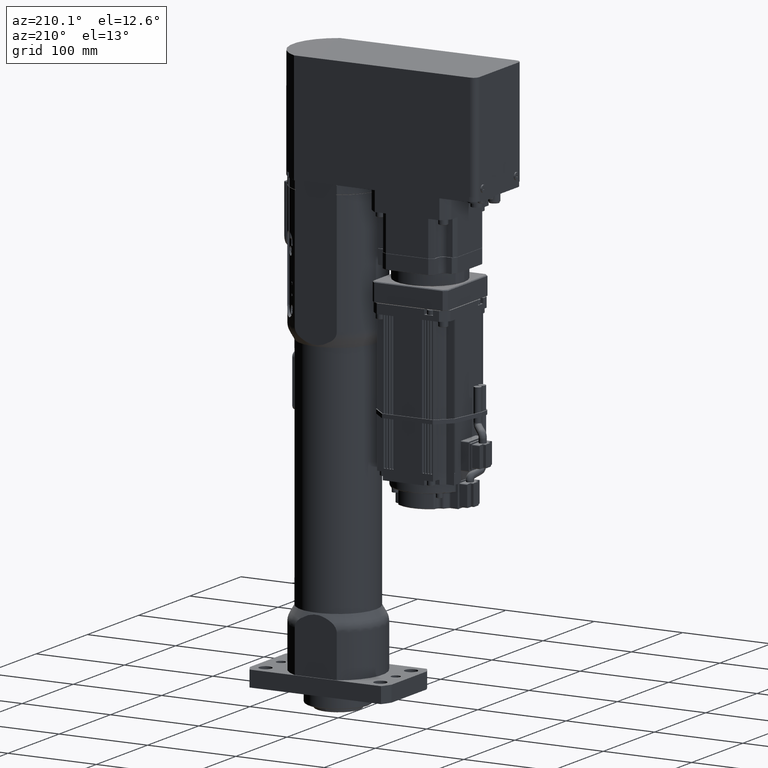
[diagram: clean part render]
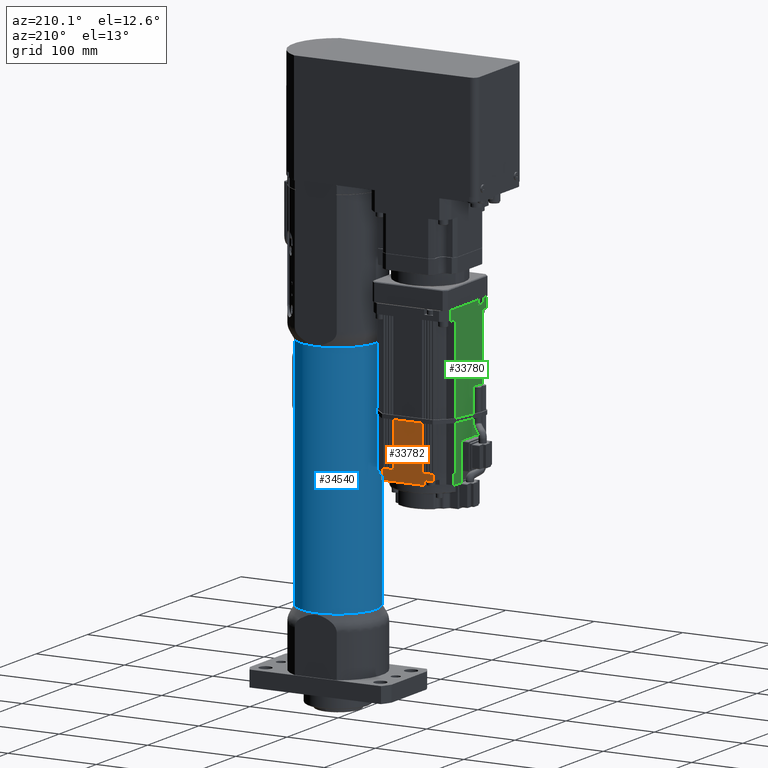
[diagram: same view with three faces highlighted in distinct colors, each labeled with its STEP entity id]
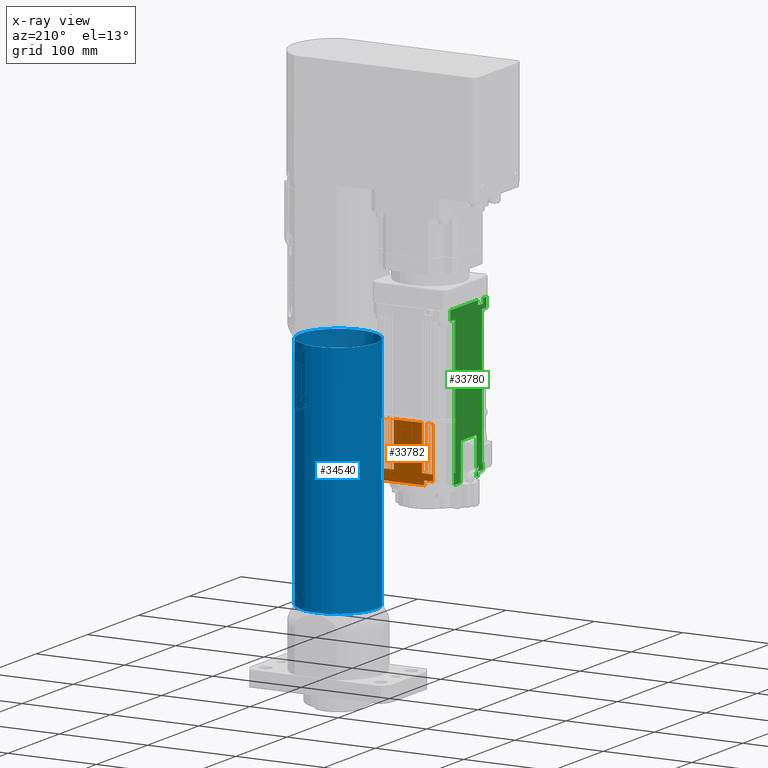
[diagram: x-ray of the same camera — body ghosted, the three highlighted faces saturated]
A machine part, auxiliary view with three faces highlighted in distinct colors.
The next image is the same camera in x-ray (body ghosted, the three faces saturated) — at least one of them is partly hidden behind the body in this view.
Their STEP definitions:

[orange] entity #33782 — the highlighted planar face has unit normal (0, 1, -0).
#741=PLANE('',#35869);
#2211=FACE_OUTER_BOUND('',#4034,.T.);
#4034=EDGE_LOOP('',(#22567,#22568,#22569,#22570,#22571,#22572,#22573,#22574,
#22575,#22576,#22577,#22578,#22579,#22580,#22581,#22582,#22583,#22584,#22585,
#22586,#22587,#22588,#22589,#22590,#22591,#22592,#22593,#22594,#22595,#22596,
#22597,#22598,#22599,#22600,#22601,#22602,#22603,#22604));
#8067=LINE('',#51110,#10763);
#8068=LINE('',#51111,#10764);
#8069=LINE('',#51112,#10765);
#8070=LINE('',#51113,#10766);
#8071=LINE('',#51114,#10767);
#8072=LINE('',#51115,#10768);
#8073=LINE('',#51116,#10769);
#8074=LINE('',#51117,#10770);
#8075=LINE('',#51119,#10771);
#8111=LINE('',#51212,#10807);
#8112=LINE('',#51215,#10808);
#8113=LINE('',#51217,#10809);
#8114=LINE('',#51218,#10810);
#8115=LINE('',#51220,#10811);
#8116=LINE('',#51222,#10812);
#8117=LINE('',#51224,#10813);
#8118=LINE('',#51225,#10814);
#8119=LINE('',#51227,#10815);
#8120=LINE('',#51229,#10816);
#8121=LINE('',#51230,#10817);
#8122=LINE('',#51232,#10818);
#8123=LINE('',#51234,#10819);
#8124=LINE('',#51235,#10820);
#8125=LINE('',#51237,#10821);
#8126=LINE('',#51239,#10822);
#8127=LINE('',#51240,#10823);
#8128=LINE('',#51242,#10824);
#8129=LINE('',#51244,#10825);
#8130=LINE('',#51245,#10826);
#8131=LINE('',#51247,#10827);
#8132=LINE('',#51249,#10828);
#8133=LINE('',#51250,#10829);
#8134=LINE('',#51252,#10830);
#8135=LINE('',#51254,#10831);
#8136=LINE('',#51255,#10832);
#8137=LINE('',#51257,#10833);
#8138=LINE('',#51259,#10834);
#8139=LINE('',#51260,#10835);
#10763=VECTOR('',#40345,10.);
#10764=VECTOR('',#40346,10.);
#10765=VECTOR('',#40347,10.);
#10766=VECTOR('',#40348,10.);
#10767=VECTOR('',#40349,10.);
#10768=VECTOR('',#40350,10.);
#10769=VECTOR('',#40351,10.);
#10770=VECTOR('',#40352,10.);
#10771=VECTOR('',#40353,10.);
#10807=VECTOR('',#40405,10.);
#10808=VECTOR('',#40408,10.);
#10809=VECTOR('',#40409,10.);
#10810=VECTOR('',#40410,10.);
#10811=VECTOR('',#40411,10.);
#10812=VECTOR('',#40412,10.);
#10813=VECTOR('',#40413,10.);
#10814=VECTOR('',#40414,10.);
#10815=VECTOR('',#40415,10.);
#10816=VECTOR('',#40416,10.);
#10817=VECTOR('',#40417,10.);
#10818=VECTOR('',#40418,10.);
#10819=VECTOR('',#40419,10.);
#10820=VECTOR('',#40420,10.);
#10821=VECTOR('',#40421,10.);
#10822=VECTOR('',#40422,10.);
#10823=VECTOR('',#40423,10.);
#10824=VECTOR('',#40424,10.);
#10825=VECTOR('',#40425,10.);
#10826=VECTOR('',#40426,10.);
#10827=VECTOR('',#40427,10.);
#10828=VECTOR('',#40428,10.);
#10829=VECTOR('',#40429,10.);
#10830=VECTOR('',#40430,10.);
#10831=VECTOR('',#40431,10.);
#10832=VECTOR('',#40432,10.);
#10833=VECTOR('',#40433,10.);
#10834=VECTOR('',#40434,10.);
#10835=VECTOR('',#40435,10.);
#13407=VERTEX_POINT('',#50629);
#13409=VERTEX_POINT('',#50633);
#13411=VERTEX_POINT('',#50638);
#13413=VERTEX_POINT('',#50642);
#13415=VERTEX_POINT('',#50647);
#13417=VERTEX_POINT('',#50651);
#13419=VERTEX_POINT('',#50656);
#13421=VERTEX_POINT('',#50660);
#13423=VERTEX_POINT('',#50665);
#13425=VERTEX_POINT('',#50669);
#13427=VERTEX_POINT('',#50674);
#13429=VERTEX_POINT('',#50678);
#13431=VERTEX_POINT('',#50683);
#13433=VERTEX_POINT('',#50687);
#13434=VERTEX_POINT('',#50691);
#13436=VERTEX_POINT('',#50694);
#13582=VERTEX_POINT('',#51108);
#13583=VERTEX_POINT('',#51118);
#13614=VERTEX_POINT('',#51210);
#13615=VERTEX_POINT('',#51214);
#13616=VERTEX_POINT('',#51216);
#13617=VERTEX_POINT('',#51219);
#13618=VERTEX_POINT('',#51221);
#13619=VERTEX_POINT('',#51223);
#13620=VERTEX_POINT('',#51226);
#13621=VERTEX_POINT('',#51228);
#13622=VERTEX_POINT('',#51231);
#13623=VERTEX_POINT('',#51233);
#13624=VERTEX_POINT('',#51236);
#13625=VERTEX_POINT('',#51238);
#13626=VERTEX_POINT('',#51241);
#13627=VERTEX_POINT('',#51243);
#13628=VERTEX_POINT('',#51246);
#13629=VERTEX_POINT('',#51248);
#13630=VERTEX_POINT('',#51251);
#13631=VERTEX_POINT('',#51253);
#13632=VERTEX_POINT('',#51256);
#13633=VERTEX_POINT('',#51258);
#17083=EDGE_CURVE('',#13436,#13582,#8067,.T.);
#17084=EDGE_CURVE('',#13431,#13434,#8068,.T.);
#17085=EDGE_CURVE('',#13427,#13433,#8069,.T.);
#17086=EDGE_CURVE('',#13423,#13429,#8070,.T.);
#17087=EDGE_CURVE('',#13419,#13425,#8071,.T.);
#17088=EDGE_CURVE('',#13415,#13421,#8072,.T.);
#17089=EDGE_CURVE('',#13411,#13417,#8073,.T.);
#17090=EDGE_CURVE('',#13407,#13413,#8074,.T.);
#17091=EDGE_CURVE('',#13583,#13409,#8075,.T.);
#17134=EDGE_CURVE('',#13582,#13614,#8111,.T.);
#17135=EDGE_CURVE('',#13615,#13434,#8112,.T.);
#17136=EDGE_CURVE('',#13615,#13616,#8113,.T.);
#17137=EDGE_CURVE('',#13436,#13616,#8114,.T.);
#17138=EDGE_CURVE('',#13617,#13614,#8115,.T.);
#17139=EDGE_CURVE('',#13617,#13618,#8116,.T.);
#17140=EDGE_CURVE('',#13618,#13619,#8117,.T.);
#17141=EDGE_CURVE('',#13619,#13583,#8118,.T.);
#17142=EDGE_CURVE('',#13620,#13409,#8119,.T.);
#17143=EDGE_CURVE('',#13620,#13621,#8120,.T.);
#17144=EDGE_CURVE('',#13407,#13621,#8121,.T.);
#17145=EDGE_CURVE('',#13622,#13413,#8122,.T.);
#17146=EDGE_CURVE('',#13622,#13623,#8123,.T.);
#17147=EDGE_CURVE('',#13411,#13623,#8124,.T.);
#17148=EDGE_CURVE('',#13624,#13417,#8125,.T.);
#17149=EDGE_CURVE('',#13624,#13625,#8126,.T.);
#17150=EDGE_CURVE('',#13415,#13625,#8127,.T.);
#17151=EDGE_CURVE('',#13626,#13421,#8128,.T.);
#17152=EDGE_CURVE('',#13626,#13627,#8129,.T.);
#17153=EDGE_CURVE('',#13419,#13627,#8130,.T.);
#17154=EDGE_CURVE('',#13628,#13425,#8131,.T.);
#17155=EDGE_CURVE('',#13628,#13629,#8132,.T.);
#17156=EDGE_CURVE('',#13423,#13629,#8133,.T.);
#17157=EDGE_CURVE('',#13630,#13429,#8134,.T.);
#17158=EDGE_CURVE('',#13630,#13631,#8135,.T.);
#17159=EDGE_CURVE('',#13427,#13631,#8136,.T.);
#17160=EDGE_CURVE('',#13632,#13433,#8137,.T.);
#17161=EDGE_CURVE('',#13632,#13633,#8138,.T.);
#17162=EDGE_CURVE('',#13431,#13633,#8139,.T.);
#22567=ORIENTED_EDGE('',*,*,#17084,.T.);
#22568=ORIENTED_EDGE('',*,*,#17135,.F.);
#22569=ORIENTED_EDGE('',*,*,#17136,.T.);
#22570=ORIENTED_EDGE('',*,*,#17137,.F.);
#22571=ORIENTED_EDGE('',*,*,#17083,.T.);
#22572=ORIENTED_EDGE('',*,*,#17134,.T.);
#22573=ORIENTED_EDGE('',*,*,#17138,.F.);
#22574=ORIENTED_EDGE('',*,*,#17139,.T.);
#22575=ORIENTED_EDGE('',*,*,#17140,.T.);
#22576=ORIENTED_EDGE('',*,*,#17141,.T.);
#22577=ORIENTED_EDGE('',*,*,#17091,.T.);
#22578=ORIENTED_EDGE('',*,*,#17142,.F.);
#22579=ORIENTED_EDGE('',*,*,#17143,.T.);
#22580=ORIENTED_EDGE('',*,*,#17144,.F.);
#22581=ORIENTED_EDGE('',*,*,#17090,.T.);
#22582=ORIENTED_EDGE('',*,*,#17145,.F.);
#22583=ORIENTED_EDGE('',*,*,#17146,.T.);
#22584=ORIENTED_EDGE('',*,*,#17147,.F.);
#22585=ORIENTED_EDGE('',*,*,#17089,.T.);
#22586=ORIENTED_EDGE('',*,*,#17148,.F.);
#22587=ORIENTED_EDGE('',*,*,#17149,.T.);
#22588=ORIENTED_EDGE('',*,*,#17150,.F.);
#22589=ORIENTED_EDGE('',*,*,#17088,.T.);
#22590=ORIENTED_EDGE('',*,*,#17151,.F.);
#22591=ORIENTED_EDGE('',*,*,#17152,.T.);
#22592=ORIENTED_EDGE('',*,*,#17153,.F.);
#22593=ORIENTED_EDGE('',*,*,#17087,.T.);
#22594=ORIENTED_EDGE('',*,*,#17154,.F.);
#22595=ORIENTED_EDGE('',*,*,#17155,.T.);
#22596=ORIENTED_EDGE('',*,*,#17156,.F.);
#22597=ORIENTED_EDGE('',*,*,#17086,.T.);
#22598=ORIENTED_EDGE('',*,*,#17157,.F.);
#22599=ORIENTED_EDGE('',*,*,#17158,.T.);
#22600=ORIENTED_EDGE('',*,*,#17159,.F.);
#22601=ORIENTED_EDGE('',*,*,#17085,.T.);
#22602=ORIENTED_EDGE('',*,*,#17160,.F.);
#22603=ORIENTED_EDGE('',*,*,#17161,.T.);
#22604=ORIENTED_EDGE('',*,*,#17162,.F.);
#33782=ADVANCED_FACE('',(#2211),#741,.T.);
#35869=AXIS2_PLACEMENT_3D('',#51213,#40406,#40407);
#40345=DIRECTION('',(1.,-2.39794757605666E-14,-5.4831952850511E-14));
#40346=DIRECTION('',(1.,-2.39794757605666E-14,-5.4831952850511E-14));
#40347=DIRECTION('',(1.,-2.39794757605666E-14,-5.4831952850511E-14));
#40348=DIRECTION('',(1.,-2.39794757605666E-14,-5.4831952850511E-14));
#40349=DIRECTION('',(1.,-2.39794757605666E-14,-5.4831952850511E-14));
#40350=DIRECTION('',(1.,-2.39794757605666E-14,-5.4831952850511E-14));
#40351=DIRECTION('',(1.,-2.39794757605666E-14,-5.4831952850511E-14));
#40352=DIRECTION('',(1.,-2.39794757605666E-14,-5.4831952850511E-14));
#40353=DIRECTION('',(1.,-2.39794757605666E-14,-5.4831952850511E-14));
#40405=DIRECTION('',(-5.48319528505112E-14,-1.00722983923794E-14,-1.));
#40406=DIRECTION('center_axis',(2.39794757605661E-14,1.,-1.00722983923807E-14));
#40407=DIRECTION('ref_axis',(1.,-2.39794757605666E-14,-5.4831952850511E-14));
#40408=DIRECTION('',(5.48319528505112E-14,1.00722983923794E-14,1.));
#40409=DIRECTION('',(1.,-2.39794757605666E-14,-5.4831952850511E-14));
#40410=DIRECTION('',(-5.50049746205827E-14,-1.00722983923794E-14,-1.));
#40411=DIRECTION('',(1.,-2.39794757605666E-14,-5.4831952850511E-14));
#40412=DIRECTION('',(5.48319528505112E-14,1.00722983923794E-14,1.));
#40413=DIRECTION('',(-1.,2.39794757605666E-14,5.4831952850511E-14));
#40414=DIRECTION('',(5.48319528505112E-14,1.00722983923794E-14,1.));
#40415=DIRECTION('',(5.48752082930291E-14,1.00722983923794E-14,1.));
#40416=DIRECTION('',(1.,-2.39794757605666E-14,-5.4831952850511E-14));
#40417=DIRECTION('',(-5.48896267738684E-14,-1.00722983923794E-14,-1.));
#40418=DIRECTION('',(5.47886974079934E-14,1.00722983923794E-14,1.));
#40419=DIRECTION('',(1.,-2.39794757605666E-14,-5.4831952850511E-14));
#40420=DIRECTION('',(-5.48607898121898E-14,-1.00722983923794E-14,-1.));
#40421=DIRECTION('',(5.44282353870112E-14,1.00722983923794E-14,1.));
#40422=DIRECTION('',(1.,-2.39794757605666E-14,-5.4831952850511E-14));
#40423=DIRECTION('',(-5.44570723486897E-14,-1.00722983923794E-14,-1.));
#40424=DIRECTION('',(5.4572420195404E-14,1.00722983923794E-14,1.));
#40425=DIRECTION('',(1.,-2.39794757605666E-14,-5.4831952850511E-14));
#40426=DIRECTION('',(-5.47166050037969E-14,-1.00722983923794E-14,-1.));
#40427=DIRECTION('',(5.48896267738684E-14,1.00722983923794E-14,1.));
#40428=DIRECTION('',(1.,-2.39794757605666E-14,-5.4831952850511E-14));
#40429=DIRECTION('',(-5.49473006972255E-14,-1.00722983923794E-14,-1.));
#40430=DIRECTION('',(5.53510181607256E-14,1.00722983923794E-14,1.));
#40431=DIRECTION('',(1.,-2.39794757605666E-14,-5.4831952850511E-14));
#40432=DIRECTION('',(-5.53510181607256E-14,-1.00722983923794E-14,-1.));
#40433=DIRECTION('',(5.48896267738684E-14,1.00722983923794E-14,1.));
#40434=DIRECTION('',(1.,-2.39794757605666E-14,-5.4831952850511E-14));
#40435=DIRECTION('',(-5.48896267738684E-14,-1.00722983923794E-14,-1.));
#50629=CARTESIAN_POINT('',(-128.896933041038,43.4999999999771,269.000000000005));
#50633=CARTESIAN_POINT('',(-131.596933041038,43.4999999999771,269.000000000005));
#50638=CARTESIAN_POINT('',(-125.896933041038,43.499999999977,269.000000000005));
#50642=CARTESIAN_POINT('',(-128.596933041038,43.4999999999771,269.000000000005));
#50647=CARTESIAN_POINT('',(-122.896933041038,43.4999999999769,269.000000000004));
#50651=CARTESIAN_POINT('',(-125.596933041038,43.499999999977,269.000000000005));
#50656=CARTESIAN_POINT('',(-119.896933041038,43.4999999999769,269.000000000004));
#50660=CARTESIAN_POINT('',(-122.596933041038,43.4999999999769,269.000000000004));
#50665=CARTESIAN_POINT('',(-85.3969330410377,43.499999999976,269.000000000002));
#50669=CARTESIAN_POINT('',(-88.0969330410377,43.4999999999761,269.000000000003));
#50674=CARTESIAN_POINT('',(-82.3969330410377,43.499999999976,269.000000000002));
#50678=CARTESIAN_POINT('',(-85.0969330410377,43.499999999976,269.000000000002));
#50683=CARTESIAN_POINT('',(-79.3969330410377,43.4999999999759,269.000000000002));
#50687=CARTESIAN_POINT('',(-82.0969330410377,43.499999999976,269.000000000002));
#50691=CARTESIAN_POINT('',(-79.0969330410377,43.4999999999759,269.000000000002));
#50694=CARTESIAN_POINT('',(-76.3969330410377,43.4999999999758,269.000000000002));
#51108=CARTESIAN_POINT('',(-75.4969330410377,43.4999999999758,269.000000000002));
#51110=CARTESIAN_POINT('',(-123.63035301562,43.4999999999769,269.000000000004));
#51111=CARTESIAN_POINT('',(-123.63035301562,43.4999999999769,269.000000000004));
#51112=CARTESIAN_POINT('',(-123.63035301562,43.4999999999769,269.000000000004));
#51113=CARTESIAN_POINT('',(-123.63035301562,43.4999999999769,269.000000000004));
#51114=CARTESIAN_POINT('',(-123.63035301562,43.4999999999769,269.000000000004));
#51115=CARTESIAN_POINT('',(-123.63035301562,43.4999999999769,269.000000000004));
#51116=CARTESIAN_POINT('',(-123.63035301562,43.4999999999769,269.000000000004));
#51117=CARTESIAN_POINT('',(-123.63035301562,43.4999999999769,269.000000000004));
#51118=CARTESIAN_POINT('',(-132.496933041038,43.4999999999772,269.000000000005));
#51119=CARTESIAN_POINT('',(-123.63035301562,43.4999999999769,269.000000000004));
#51210=CARTESIAN_POINT('',(-75.4969330410411,43.4999999999752,206.500000000002));
#51212=CARTESIAN_POINT('',(-75.4969330410363,43.4999999999761,295.000000000002));
#51213=CARTESIAN_POINT('Origin',(-139.263772990196,43.4999999999785,383.500000000005));
#51214=CARTESIAN_POINT('',(-79.0969330410404,43.4999999999754,218.500000000002));
#51215=CARTESIAN_POINT('',(-79.0969330410317,43.499999999977,378.000000000002));
#51216=CARTESIAN_POINT('',(-76.3969330410405,43.4999999999753,218.500000000002));
#51217=CARTESIAN_POINT('',(-108.880353015623,43.4999999999761,218.500000000004));
#51218=CARTESIAN_POINT('',(-76.3969330410359,43.4999999999761,301.000000000002));
#51219=CARTESIAN_POINT('',(-122.496933041041,43.4999999999763,206.500000000004));
#51220=CARTESIAN_POINT('',(-139.263772990206,43.4999999999767,206.500000000005));
#51221=CARTESIAN_POINT('',(-122.496933041041,43.4999999999764,211.500000000004));
#51222=CARTESIAN_POINT('',(-122.496933041036,43.4999999999772,295.000000000004));
#51223=CARTESIAN_POINT('',(-132.496933041041,43.4999999999766,211.500000000005));
#51224=CARTESIAN_POINT('',(-133.76680260941,43.4999999999766,211.500000000005));
#51225=CARTESIAN_POINT('',(-132.496933041036,43.4999999999774,295.000000000005));
#51226=CARTESIAN_POINT('',(-131.59693304104,43.4999999999766,218.500000000005));
#51227=CARTESIAN_POINT('',(-131.596933041032,43.4999999999782,378.000000000005));
#51228=CARTESIAN_POINT('',(-128.89693304104,43.4999999999766,218.500000000005));
#51229=CARTESIAN_POINT('',(-135.130353015623,43.4999999999767,218.500000000005));
#51230=CARTESIAN_POINT('',(-128.896933041036,43.4999999999774,301.000000000005));
#51231=CARTESIAN_POINT('',(-128.59693304104,43.4999999999766,218.500000000005));
#51232=CARTESIAN_POINT('',(-128.596933041032,43.4999999999782,378.000000000005));
#51233=CARTESIAN_POINT('',(-125.89693304104,43.4999999999765,218.500000000005));
#51234=CARTESIAN_POINT('',(-133.630353015623,43.4999999999767,218.500000000005));
#51235=CARTESIAN_POINT('',(-125.896933041036,43.4999999999773,301.000000000005));
#51236=CARTESIAN_POINT('',(-125.59693304104,43.4999999999765,218.500000000005));
#51237=CARTESIAN_POINT('',(-125.596933041032,43.4999999999781,378.000000000005));
#51238=CARTESIAN_POINT('',(-122.89693304104,43.4999999999764,218.500000000004));
#51239=CARTESIAN_POINT('',(-132.130353015623,43.4999999999766,218.500000000005));
#51240=CARTESIAN_POINT('',(-122.896933041036,43.4999999999772,301.000000000004));
#51241=CARTESIAN_POINT('',(-122.59693304104,43.4999999999764,218.500000000004));
#51242=CARTESIAN_POINT('',(-122.596933041032,43.499999999978,378.000000000004));
#51243=CARTESIAN_POINT('',(-119.89693304104,43.4999999999764,218.500000000004));
#51244=CARTESIAN_POINT('',(-130.630353015623,43.4999999999766,218.500000000005));
#51245=CARTESIAN_POINT('',(-119.896933041036,43.4999999999772,301.000000000004));
#51246=CARTESIAN_POINT('',(-88.0969330410404,43.4999999999756,218.500000000003));
#51247=CARTESIAN_POINT('',(-88.0969330410317,43.4999999999772,378.000000000003));
#51248=CARTESIAN_POINT('',(-85.3969330410405,43.4999999999755,218.500000000002));
#51249=CARTESIAN_POINT('',(-113.380353015623,43.4999999999762,218.500000000004));
#51250=CARTESIAN_POINT('',(-85.3969330410359,43.4999999999764,301.000000000002));
#51251=CARTESIAN_POINT('',(-85.0969330410405,43.4999999999755,218.500000000002));
#51252=CARTESIAN_POINT('',(-85.0969330410317,43.4999999999771,378.000000000002));
#51253=CARTESIAN_POINT('',(-82.3969330410405,43.4999999999755,218.500000000002));
#51254=CARTESIAN_POINT('',(-111.880353015623,43.4999999999762,218.500000000004));
#51255=CARTESIAN_POINT('',(-82.3969330410359,43.4999999999763,301.000000000002));
#51256=CARTESIAN_POINT('',(-82.0969330410404,43.4999999999754,218.500000000002));
#51257=CARTESIAN_POINT('',(-82.0969330410317,43.4999999999771,378.000000000002));
#51258=CARTESIAN_POINT('',(-79.3969330410404,43.4999999999754,218.500000000002));
#51259=CARTESIAN_POINT('',(-110.380353015623,43.4999999999761,218.500000000004));
#51260=CARTESIAN_POINT('',(-79.3969330410359,43.4999999999762,301.000000000002));

[blue] entity #34540 — the highlighted cylindrical surface (bore or boss wall) has radius 43 mm, axis along (-0, 0, 1).
#2969=FACE_OUTER_BOUND('',#4852,.T.);
#4852=EDGE_LOOP('',(#26861,#26862,#26863,#26864,#26865,#26866,#26867,#26868,
#26869,#26870,#26871,#26872));
#6667=CIRCLE('',#37260,43.);
#6668=CIRCLE('',#37261,43.);
#6669=CIRCLE('',#37262,43.);
#6670=CIRCLE('',#37263,43.);
#6671=CIRCLE('',#37264,43.);
#6672=CIRCLE('',#37265,43.);
#9433=LINE('',#55938,#12129);
#9445=LINE('',#55990,#12141);
#9446=LINE('',#55994,#12142);
#9447=LINE('',#55998,#12143);
#12129=VECTOR('',#44477,10.);
#12141=VECTOR('',#44523,43.);
#12142=VECTOR('',#44526,10.);
#12143=VECTOR('',#44529,43.);
#14964=VERTEX_POINT('',#55935);
#14965=VERTEX_POINT('',#55937);
#14987=VERTEX_POINT('',#55987);
#14988=VERTEX_POINT('',#55989);
#14989=VERTEX_POINT('',#55991);
#14990=VERTEX_POINT('',#55993);
#14991=VERTEX_POINT('',#55995);
#14992=VERTEX_POINT('',#55997);
#19216=EDGE_CURVE('',#14965,#14964,#9433,.T.);
#19239=EDGE_CURVE('',#14987,#14987,#6667,.T.);
#19240=EDGE_CURVE('',#14987,#14988,#9445,.T.);
#19241=EDGE_CURVE('',#14988,#14989,#6668,.T.);
#19242=EDGE_CURVE('',#14989,#14990,#9446,.T.);
#19243=EDGE_CURVE('',#14990,#14991,#6669,.T.);
#19244=EDGE_CURVE('',#14991,#14992,#9447,.T.);
#19245=EDGE_CURVE('',#14992,#14992,#6670,.T.);
#19246=EDGE_CURVE('',#14991,#14965,#6671,.T.);
#19247=EDGE_CURVE('',#14964,#14988,#6672,.T.);
#26861=ORIENTED_EDGE('',*,*,#19239,.F.);
#26862=ORIENTED_EDGE('',*,*,#19240,.T.);
#26863=ORIENTED_EDGE('',*,*,#19241,.T.);
#26864=ORIENTED_EDGE('',*,*,#19242,.T.);
#26865=ORIENTED_EDGE('',*,*,#19243,.T.);
#26866=ORIENTED_EDGE('',*,*,#19244,.T.);
#26867=ORIENTED_EDGE('',*,*,#19245,.F.);
#26868=ORIENTED_EDGE('',*,*,#19244,.F.);
#26869=ORIENTED_EDGE('',*,*,#19246,.T.);
#26870=ORIENTED_EDGE('',*,*,#19216,.T.);
#26871=ORIENTED_EDGE('',*,*,#19247,.T.);
#26872=ORIENTED_EDGE('',*,*,#19240,.F.);
#31588=CYLINDRICAL_SURFACE('',#37259,43.);
#34540=ADVANCED_FACE('',(#2969),#31588,.T.);
#37259=AXIS2_PLACEMENT_3D('',#55986,#44519,#44520);
#37260=AXIS2_PLACEMENT_3D('',#55988,#44521,#44522);
#37261=AXIS2_PLACEMENT_3D('',#55992,#44524,#44525);
#37262=AXIS2_PLACEMENT_3D('',#55996,#44527,#44528);
#37263=AXIS2_PLACEMENT_3D('',#55999,#44530,#44531);
#37264=AXIS2_PLACEMENT_3D('',#56000,#44532,#44533);
#37265=AXIS2_PLACEMENT_3D('',#56001,#44534,#44535);
#44477=DIRECTION('',(-1.66741034889409E-13,7.79443320540401E-15,1.));
#44519=DIRECTION('center_axis',(-1.66741034889409E-13,7.79443320540401E-15,
1.));
#44520=DIRECTION('ref_axis',(-1.,1.29112725371859E-13,-1.6674103488941E-13));
#44521=DIRECTION('center_axis',(-1.66741034889409E-13,7.79443320540401E-15,
1.));
#44522=DIRECTION('ref_axis',(-1.,1.29112725371859E-13,-1.6674103488941E-13));
#44523=DIRECTION('',(1.66741034889409E-13,-7.79443320540401E-15,-1.));
#44524=DIRECTION('center_axis',(-1.66741034889409E-13,7.79443320540401E-15,
1.));
#44525=DIRECTION('ref_axis',(-1.,1.29112725371859E-13,-1.6674103488941E-13));
#44526=DIRECTION('',(1.66741034889409E-13,-7.79443320540401E-15,-1.));
#44527=DIRECTION('center_axis',(1.66741034889409E-13,-7.79443320540401E-15,
-1.));
#44528=DIRECTION('ref_axis',(-1.,1.29112725371859E-13,-1.6674103488941E-13));
#44529=DIRECTION('',(1.66741034889409E-13,-7.79443320540401E-15,-1.));
#44530=DIRECTION('center_axis',(1.66741034889409E-13,-7.79443320540401E-15,
-1.));
#44531=DIRECTION('ref_axis',(-1.,1.29112725371859E-13,-1.6674103488941E-13));
#44532=DIRECTION('center_axis',(1.66741034889409E-13,-7.79443320540401E-15,
-1.));
#44533=DIRECTION('ref_axis',(-1.,1.29112725371859E-13,-1.6674103488941E-13));
#44534=DIRECTION('center_axis',(-1.66741034889409E-13,7.79443320540401E-15,
1.));
#44535=DIRECTION('ref_axis',(-1.,1.29112725371859E-13,-1.6674103488941E-13));
#55935=CARTESIAN_POINT('',(39.0000000000456,-18.1107702762981,317.000000000062));
#55937=CARTESIAN_POINT('',(39.0000000000556,-18.1107702762986,257.000000000062));
#55938=CARTESIAN_POINT('',(39.0000000000876,-18.1107702763001,65.0000000000619));
#55986=CARTESIAN_POINT('Origin',(8.99529113993628E-11,-2.02283153271667E-11,
65.0000000000553));
#55987=CARTESIAN_POINT('',(43.0000000000454,-2.36937828710775E-11,332.000000000062));
#55988=CARTESIAN_POINT('Origin',(4.54330550838906E-11,-1.81472016613238E-11,
332.000000000055));
#55989=CARTESIAN_POINT('',(43.0000000000479,-2.38106993691585E-11,317.000000000063));
#55990=CARTESIAN_POINT('',(43.00000000009,-2.57748965369203E-11,65.0000000000625));
#55991=CARTESIAN_POINT('',(39.0000000000503,18.1107702762515,317.000000000062));
#55992=CARTESIAN_POINT('Origin',(4.79341706072317E-11,-1.82641181594049E-11,
317.000000000055));
#55993=CARTESIAN_POINT('',(39.0000000000603,18.1107702762511,257.000000000062));
#55994=CARTESIAN_POINT('',(39.0000000000923,18.1107702762496,65.0000000000617));
#55995=CARTESIAN_POINT('',(43.0000000000579,-2.42783653614828E-11,257.000000000063));
#55996=CARTESIAN_POINT('Origin',(5.79386327005963E-11,-1.87317841517291E-11,
257.000000000055));
#55997=CARTESIAN_POINT('',(43.00000000009,-2.57748965369203E-11,65.0000000000625));
#55998=CARTESIAN_POINT('',(43.00000000009,-2.57748965369203E-11,65.0000000000625));
#55999=CARTESIAN_POINT('Origin',(8.99529113993628E-11,-2.02283153271667E-11,
65.0000000000553));
#56000=CARTESIAN_POINT('Origin',(5.79386327005963E-11,-1.87317841517291E-11,
257.000000000055));
#56001=CARTESIAN_POINT('Origin',(4.79341706072317E-11,-1.82641181594049E-11,
317.000000000055));

[green] entity #33780 — the highlighted planar face has unit normal (-1, 0, 0).
#45=ELLIPSE('',#35866,31.9406149128375,4.);
#46=ELLIPSE('',#35867,31.9406149128375,4.);
#449=FACE_BOUND('',#4030,.T.);
#450=FACE_BOUND('',#4031,.T.);
#451=FACE_BOUND('',#4032,.T.);
#739=PLANE('',#35861);
#1650=B_SPLINE_CURVE_WITH_KNOTS('',3,(#49129,#49130,#49131,#49132,#49133,
#49134,#49135,#49136,#49137,#49138,#49139,#49140),.UNSPECIFIED.,.F.,.F.,
(4,2,2,2,2,4),(1.19263499991973,1.24503714380853,1.35520784818935,1.48344915877361,
1.5595970402577,1.63574492174179),.UNSPECIFIED.);
#1709=B_SPLINE_CURVE_WITH_KNOTS('',3,(#51152,#51153,#51154,#51155,#51156,
#51157,#51158,#51159,#51160,#51161,#51162,#51163,#51164,#51165,#51166,#51167,
#51168,#51169),.UNSPECIFIED.,.F.,.F.,(4,2,2,2,2,2,2,2,4),(0.,0.0880148905567986,
0.176029781113597,0.273796558298388,0.371563335483179,0.479081764201681,
0.586600192920183,0.701484602093177,0.707399671797435),.UNSPECIFIED.);
#2209=FACE_OUTER_BOUND('',#4029,.T.);
#4029=EDGE_LOOP('',(#22512,#22513,#22514,#22515,#22516,#22517,#22518,#22519,
#22520,#22521,#22522,#22523,#22524,#22525,#22526,#22527,#22528,#22529,#22530,
#22531,#22532,#22533,#22534,#22535,#22536,#22537,#22538,#22539,#22540,#22541,
#22542,#22543,#22544,#22545,#22546,#22547,#22548));
#4030=EDGE_LOOP('',(#22549,#22550));
#4031=EDGE_LOOP('',(#22551,#22552,#22553,#22554));
#4032=EDGE_LOOP('',(#22555,#22556,#22557,#22558));
#6045=CIRCLE('',#35862,1.);
#6046=CIRCLE('',#35863,1.);
#6047=CIRCLE('',#35864,1.);
#6048=CIRCLE('',#35865,1.);
#7810=LINE('',#50492,#10506);
#7815=LINE('',#50510,#10511);
#7840=LINE('',#50593,#10536);
#7841=LINE('',#50598,#10537);
#7927=LINE('',#50828,#10623);
#8005=LINE('',#50977,#10701);
#8043=LINE('',#51079,#10739);
#8078=LINE('',#51124,#10774);
#8079=LINE('',#51126,#10775);
#8080=LINE('',#51128,#10776);
#8081=LINE('',#51130,#10777);
#8082=LINE('',#51134,#10778);
#8083=LINE('',#51138,#10779);
#8084=LINE('',#51142,#10780);
#8085=LINE('',#51146,#10781);
#8086=LINE('',#51148,#10782);
#8087=LINE('',#51150,#10783);
#8088=LINE('',#51173,#10784);
#8089=LINE('',#51175,#10785);
#8090=LINE('',#51177,#10786);
#8091=LINE('',#51179,#10787);
#8092=LINE('',#51180,#10788);
#8093=LINE('',#51181,#10789);
#8094=LINE('',#51183,#10790);
#8095=LINE('',#51185,#10791);
#8096=LINE('',#51186,#10792);
#8097=LINE('',#51187,#10793);
#8098=LINE('',#51188,#10794);
#8099=LINE('',#51189,#10795);
#8100=LINE('',#51192,#10796);
#8101=LINE('',#51194,#10797);
#8102=LINE('',#51196,#10798);
#8103=LINE('',#51197,#10799);
#8104=LINE('',#51200,#10800);
#8105=LINE('',#51202,#10801);
#8106=LINE('',#51204,#10802);
#8107=LINE('',#51205,#10803);
#10506=VECTOR('',#39832,10.);
#10511=VECTOR('',#39847,10.);
#10536=VECTOR('',#39918,10.);
#10537=VECTOR('',#39923,10.);
#10623=VECTOR('',#40091,10.);
#10701=VECTOR('',#40203,10.);
#10739=VECTOR('',#40317,10.);
#10774=VECTOR('',#40358,10.);
#10775=VECTOR('',#40359,10.);
#10776=VECTOR('',#40360,10.);
#10777=VECTOR('',#40361,10.);
#10778=VECTOR('',#40364,10.);
#10779=VECTOR('',#40367,10.);
#10780=VECTOR('',#40370,10.);
#10781=VECTOR('',#40373,10.);
#10782=VECTOR('',#40374,10.);
#10783=VECTOR('',#40377,10.);
#10784=VECTOR('',#40380,10.);
#10785=VECTOR('',#40381,10.);
#10786=VECTOR('',#40382,10.);
#10787=VECTOR('',#40383,10.);
#10788=VECTOR('',#40384,10.);
#10789=VECTOR('',#40385,10.);
#10790=VECTOR('',#40386,10.);
#10791=VECTOR('',#40387,10.);
#10792=VECTOR('',#40388,10.);
#10793=VECTOR('',#40389,10.);
#10794=VECTOR('',#40390,10.);
#10795=VECTOR('',#40391,10.);
#10796=VECTOR('',#40392,10.);
#10797=VECTOR('',#40393,10.);
#10798=VECTOR('',#40394,10.);
#10799=VECTOR('',#40395,10.);
#10800=VECTOR('',#40396,10.);
#10801=VECTOR('',#40397,10.);
#10802=VECTOR('',#40398,10.);
#10803=VECTOR('',#40399,10.);
#13054=VERTEX_POINT('',#49126);
#13055=VERTEX_POINT('',#49128);
#13058=VERTEX_POINT('',#49146);
#13059=VERTEX_POINT('',#49148);
#13062=VERTEX_POINT('',#49155);
#13348=VERTEX_POINT('',#50489);
#13349=VERTEX_POINT('',#50491);
#13356=VERTEX_POINT('',#50507);
#13357=VERTEX_POINT('',#50509);
#13391=VERTEX_POINT('',#50590);
#13392=VERTEX_POINT('',#50592);
#13393=VERTEX_POINT('',#50596);
#13394=VERTEX_POINT('',#50597);
#13496=VERTEX_POINT('',#50826);
#13497=VERTEX_POINT('',#50827);
#13551=VERTEX_POINT('',#50976);
#13577=VERTEX_POINT('',#51078);
#13584=VERTEX_POINT('',#51123);
#13585=VERTEX_POINT('',#51125);
#13586=VERTEX_POINT('',#51127);
#13587=VERTEX_POINT('',#51129);
#13588=VERTEX_POINT('',#51131);
#13589=VERTEX_POINT('',#51133);
#13590=VERTEX_POINT('',#51135);
#13591=VERTEX_POINT('',#51137);
#13592=VERTEX_POINT('',#51139);
#13593=VERTEX_POINT('',#51141);
#13594=VERTEX_POINT('',#51143);
#13595=VERTEX_POINT('',#51145);
#13596=VERTEX_POINT('',#51147);
#13597=VERTEX_POINT('',#51151);
#13598=VERTEX_POINT('',#51170);
#13599=VERTEX_POINT('',#51172);
#13600=VERTEX_POINT('',#51174);
#13601=VERTEX_POINT('',#51176);
#13602=VERTEX_POINT('',#51178);
#13603=VERTEX_POINT('',#51182);
#13604=VERTEX_POINT('',#51184);
#13605=VERTEX_POINT('',#51190);
#13606=VERTEX_POINT('',#51191);
#13607=VERTEX_POINT('',#51193);
#13608=VERTEX_POINT('',#51195);
#13609=VERTEX_POINT('',#51198);
#13610=VERTEX_POINT('',#51199);
#13611=VERTEX_POINT('',#51201);
#13612=VERTEX_POINT('',#51203);
#16378=EDGE_CURVE('',#13055,#13054,#1650,.T.);
#16765=EDGE_CURVE('',#13349,#13348,#7810,.T.);
#16773=EDGE_CURVE('',#13357,#13356,#7815,.T.);
#16814=EDGE_CURVE('',#13392,#13391,#7840,.T.);
#16816=EDGE_CURVE('',#13393,#13394,#7841,.T.);
#16922=EDGE_CURVE('',#13496,#13497,#7927,.T.);
#17006=EDGE_CURVE('',#13497,#13551,#8005,.T.);
#17057=EDGE_CURVE('',#13551,#13577,#8043,.T.);
#17094=EDGE_CURVE('',#13577,#13584,#8078,.T.);
#17095=EDGE_CURVE('',#13585,#13584,#8079,.T.);
#17096=EDGE_CURVE('',#13585,#13586,#8080,.T.);
#17097=EDGE_CURVE('',#13587,#13586,#8081,.T.);
#17098=EDGE_CURVE('',#13587,#13588,#6045,.T.);
#17099=EDGE_CURVE('',#13588,#13589,#8082,.T.);
#17100=EDGE_CURVE('',#13590,#13589,#6046,.F.);
#17101=EDGE_CURVE('',#13590,#13591,#8083,.T.);
#17102=EDGE_CURVE('',#13592,#13591,#6047,.F.);
#17103=EDGE_CURVE('',#13592,#13593,#8084,.T.);
#17104=EDGE_CURVE('',#13593,#13594,#6048,.T.);
#17105=EDGE_CURVE('',#13595,#13594,#8085,.T.);
#17106=EDGE_CURVE('',#13596,#13595,#8086,.T.);
#17107=EDGE_CURVE('',#13596,#13055,#45,.T.);
#17108=EDGE_CURVE('',#13054,#13062,#8087,.T.);
#17109=EDGE_CURVE('',#13054,#13597,#1709,.T.);
#17110=EDGE_CURVE('',#13597,#13598,#46,.T.);
#17111=EDGE_CURVE('',#13599,#13598,#8088,.T.);
#17112=EDGE_CURVE('',#13600,#13599,#8089,.T.);
#17113=EDGE_CURVE('',#13600,#13601,#8090,.T.);
#17114=EDGE_CURVE('',#13601,#13602,#8091,.T.);
#17115=EDGE_CURVE('',#13602,#13393,#8092,.T.);
#17116=EDGE_CURVE('',#13349,#13394,#8093,.T.);
#17117=EDGE_CURVE('',#13348,#13603,#8094,.T.);
#17118=EDGE_CURVE('',#13603,#13604,#8095,.T.);
#17119=EDGE_CURVE('',#13604,#13357,#8096,.T.);
#17120=EDGE_CURVE('',#13356,#13392,#8097,.T.);
#17121=EDGE_CURVE('',#13391,#13496,#8098,.T.);
#17122=EDGE_CURVE('',#13059,#13058,#8099,.T.);
#17123=EDGE_CURVE('',#13605,#13606,#8100,.T.);
#17124=EDGE_CURVE('',#13607,#13606,#8101,.T.);
#17125=EDGE_CURVE('',#13607,#13608,#8102,.T.);
#17126=EDGE_CURVE('',#13605,#13608,#8103,.T.);
#17127=EDGE_CURVE('',#13609,#13610,#8104,.T.);
#17128=EDGE_CURVE('',#13611,#13610,#8105,.T.);
#17129=EDGE_CURVE('',#13611,#13612,#8106,.T.);
#17130=EDGE_CURVE('',#13609,#13612,#8107,.T.);
#22512=ORIENTED_EDGE('',*,*,#16922,.T.);
#22513=ORIENTED_EDGE('',*,*,#17006,.T.);
#22514=ORIENTED_EDGE('',*,*,#17057,.T.);
#22515=ORIENTED_EDGE('',*,*,#17094,.T.);
#22516=ORIENTED_EDGE('',*,*,#17095,.F.);
#22517=ORIENTED_EDGE('',*,*,#17096,.T.);
#22518=ORIENTED_EDGE('',*,*,#17097,.F.);
#22519=ORIENTED_EDGE('',*,*,#17098,.T.);
#22520=ORIENTED_EDGE('',*,*,#17099,.T.);
#22521=ORIENTED_EDGE('',*,*,#17100,.F.);
#22522=ORIENTED_EDGE('',*,*,#17101,.T.);
#22523=ORIENTED_EDGE('',*,*,#17102,.F.);
#22524=ORIENTED_EDGE('',*,*,#17103,.T.);
#22525=ORIENTED_EDGE('',*,*,#17104,.T.);
#22526=ORIENTED_EDGE('',*,*,#17105,.F.);
#22527=ORIENTED_EDGE('',*,*,#17106,.F.);
#22528=ORIENTED_EDGE('',*,*,#17107,.T.);
#22529=ORIENTED_EDGE('',*,*,#16378,.T.);
#22530=ORIENTED_EDGE('',*,*,#17108,.T.);
#22531=ORIENTED_EDGE('',*,*,#17108,.F.);
#22532=ORIENTED_EDGE('',*,*,#17109,.T.);
#22533=ORIENTED_EDGE('',*,*,#17110,.T.);
#22534=ORIENTED_EDGE('',*,*,#17111,.F.);
#22535=ORIENTED_EDGE('',*,*,#17112,.F.);
#22536=ORIENTED_EDGE('',*,*,#17113,.T.);
#22537=ORIENTED_EDGE('',*,*,#17114,.T.);
#22538=ORIENTED_EDGE('',*,*,#17115,.T.);
#22539=ORIENTED_EDGE('',*,*,#16816,.T.);
#22540=ORIENTED_EDGE('',*,*,#17116,.F.);
#22541=ORIENTED_EDGE('',*,*,#16765,.T.);
#22542=ORIENTED_EDGE('',*,*,#17117,.T.);
#22543=ORIENTED_EDGE('',*,*,#17118,.T.);
#22544=ORIENTED_EDGE('',*,*,#17119,.T.);
#22545=ORIENTED_EDGE('',*,*,#16773,.T.);
#22546=ORIENTED_EDGE('',*,*,#17120,.T.);
#22547=ORIENTED_EDGE('',*,*,#16814,.T.);
#22548=ORIENTED_EDGE('',*,*,#17121,.T.);
#22549=ORIENTED_EDGE('',*,*,#17122,.T.);
#22550=ORIENTED_EDGE('',*,*,#17122,.F.);
#22551=ORIENTED_EDGE('',*,*,#17123,.T.);
#22552=ORIENTED_EDGE('',*,*,#17124,.F.);
#22553=ORIENTED_EDGE('',*,*,#17125,.T.);
#22554=ORIENTED_EDGE('',*,*,#17126,.F.);
#22555=ORIENTED_EDGE('',*,*,#17127,.T.);
#22556=ORIENTED_EDGE('',*,*,#17128,.F.);
#22557=ORIENTED_EDGE('',*,*,#17129,.T.);
#22558=ORIENTED_EDGE('',*,*,#17130,.F.);
#33780=ADVANCED_FACE('',(#2209,#449,#450,#451),#739,.T.);
#35861=AXIS2_PLACEMENT_3D('',#51122,#40356,#40357);
#35862=AXIS2_PLACEMENT_3D('',#51132,#40362,#40363);
#35863=AXIS2_PLACEMENT_3D('',#51136,#40365,#40366);
#35864=AXIS2_PLACEMENT_3D('',#51140,#40368,#40369);
#35865=AXIS2_PLACEMENT_3D('',#51144,#40371,#40372);
#35866=AXIS2_PLACEMENT_3D('',#51149,#40375,#40376);
#35867=AXIS2_PLACEMENT_3D('',#51171,#40378,#40379);
#39832=DIRECTION('',(2.39794757605661E-14,1.,-1.00722983923807E-14));
#39847=DIRECTION('',(2.39794757605661E-14,1.,-1.00722983923807E-14));
#39918=DIRECTION('',(-2.39794757605661E-14,-1.,1.00722983923807E-14));
#39923=DIRECTION('',(-2.39794757605661E-14,-1.,1.00722983923807E-14));
#40091=DIRECTION('',(-2.39794757605661E-14,-1.,1.00722983923807E-14));
#40203=DIRECTION('',(-5.48319528505112E-14,-1.00722983923794E-14,-1.));
#40317=DIRECTION('',(2.39794757605661E-14,1.,-1.00722983923807E-14));
#40356=DIRECTION('center_axis',(-1.,2.39794757605666E-14,5.4831952850511E-14));
#40357=DIRECTION('ref_axis',(2.39794757605661E-14,1.,-1.00722983923807E-14));
#40358=DIRECTION('',(-5.48319528505112E-14,-1.00722983923794E-14,-1.));
#40359=DIRECTION('',(2.39794757605661E-14,1.,-1.00722983923807E-14));
#40360=DIRECTION('',(5.48319528505112E-14,1.00722983923794E-14,1.));
#40361=DIRECTION('',(2.39794757605661E-14,1.,-1.00722983923807E-14));
#40362=DIRECTION('center_axis',(1.,-2.39794757605666E-14,-5.4831952850511E-14));
#40363=DIRECTION('ref_axis',(-2.18159957667032E-14,0.707106781186536,-0.707106781186559));
#40364=DIRECTION('',(5.48319528505112E-14,1.00722983923794E-14,1.));
#40365=DIRECTION('center_axis',(1.,-2.39794757605666E-14,-5.4831952850511E-14));
#40366=DIRECTION('ref_axis',(5.57280956058924E-14,0.70710678118655,0.707106781186545));
#40367=DIRECTION('',(-2.39794757605661E-14,-1.,1.00722983923807E-14));
#40368=DIRECTION('center_axis',(1.,-2.39794757605666E-14,-5.4831952850511E-14));
#40369=DIRECTION('ref_axis',(2.18159957667022E-14,-0.707106781186548,0.707106781186547));
#40370=DIRECTION('',(-5.48319528505112E-14,-1.00722983923794E-14,-1.));
#40371=DIRECTION('center_axis',(1.,-2.39794757605666E-14,-5.4831952850511E-14));
#40372=DIRECTION('ref_axis',(-5.57280956058924E-14,-0.70710678118655,-0.707106781186545));
#40373=DIRECTION('',(2.39794757605661E-14,1.,-1.00722983923807E-14));
#40374=DIRECTION('',(5.48319528505112E-14,1.00722983923794E-14,1.));
#40375=DIRECTION('center_axis',(1.,-2.39794757605666E-14,-5.4831952850511E-14));
#40376=DIRECTION('ref_axis',(-1.40123018272607E-14,-0.984563797115535,0.175026082083328));
#40377=DIRECTION('',(5.4845830638319E-14,9.88726122160857E-15,1.));
#40378=DIRECTION('center_axis',(1.,-2.39794757605666E-14,-5.4831952850511E-14));
#40379=DIRECTION('ref_axis',(-1.40123018272607E-14,-0.984563797115535,0.175026082083328));
#40380=DIRECTION('',(5.48319528505112E-14,1.00722983923794E-14,1.));
#40381=DIRECTION('',(2.39794757605661E-14,1.,-1.00722983923807E-14));
#40382=DIRECTION('',(5.48319528505112E-14,1.00722983923794E-14,1.));
#40383=DIRECTION('',(-2.39794757605661E-14,-1.,1.00722983923807E-14));
#40384=DIRECTION('',(5.48319528505112E-14,1.00722983923794E-14,1.));
#40385=DIRECTION('',(-5.48319528505112E-14,-1.00722983923794E-14,-1.));
#40386=DIRECTION('',(-5.48319528505112E-14,-1.00722983923794E-14,-1.));
#40387=DIRECTION('',(2.39794757605661E-14,1.,-1.00722983923807E-14));
#40388=DIRECTION('',(5.48319528505112E-14,1.00722983923794E-14,1.));
#40389=DIRECTION('',(-5.48319528505112E-14,-1.00722983923794E-14,-1.));
#40390=DIRECTION('',(-5.48319528505112E-14,-1.00722983923794E-14,-1.));
#40391=DIRECTION('',(5.51372641822831E-14,1.02943429973045E-14,1.));
#40392=DIRECTION('',(-2.39794757605661E-14,-1.,1.00722983923807E-14));
#40393=DIRECTION('',(5.48319528505112E-14,1.02597386432902E-14,1.));
#40394=DIRECTION('',(2.39794757605661E-14,1.,-1.00722983923807E-14));
#40395=DIRECTION('',(-5.48319528505112E-14,-1.01299723157366E-14,-1.));
#40396=DIRECTION('',(-2.39794757605661E-14,-1.,1.00722983923807E-14));
#40397=DIRECTION('',(5.48319528505112E-14,1.0302994085808E-14,1.));
#40398=DIRECTION('',(2.39794757605661E-14,1.,-1.00722983923807E-14));
#40399=DIRECTION('',(-5.48319528505112E-14,-1.04183419325223E-14,-1.));
#49126=CARTESIAN_POINT('',(-147.496933041042,-19.5000000000228,217.518415163837));
#49128=CARTESIAN_POINT('',(-147.496933041042,-15.9290661428195,214.96974725444));
#49129=CARTESIAN_POINT('Ctrl Pts',(-147.496933041042,-15.9290661428195,
214.96974725444));
#49130=CARTESIAN_POINT('Ctrl Pts',(-147.496933041042,-16.1194849694152,
214.957868810951));
#49131=CARTESIAN_POINT('Ctrl Pts',(-147.496933041042,-16.3128356612746,
214.964864778404));
#49132=CARTESIAN_POINT('Ctrl Pts',(-147.496933041042,-16.8511160294105,
215.02747584147));
#49133=CARTESIAN_POINT('Ctrl Pts',(-147.496933041042,-17.2725198156389,
215.156395175213));
#49134=CARTESIAN_POINT('Ctrl Pts',(-147.496933041042,-17.9833269478672,
215.511799151138));
#49135=CARTESIAN_POINT('Ctrl Pts',(-147.496933041042,-18.3899995321768,
215.824450313005));
#49136=CARTESIAN_POINT('Ctrl Pts',(-147.496933041042,-18.8489897599126,
216.327932180826));
#49137=CARTESIAN_POINT('Ctrl Pts',(-147.496933041042,-19.0159614894363,
216.550495885976));
#49138=CARTESIAN_POINT('Ctrl Pts',(-147.496933041042,-19.2987244799954,
217.026255524568));
#49139=CARTESIAN_POINT('Ctrl Pts',(-147.496933041042,-19.4146619059577,
217.279364571153));
#49140=CARTESIAN_POINT('Ctrl Pts',(-147.496933041042,-19.5000000000228,
217.518415163837));
#49146=CARTESIAN_POINT('',(-147.496933041037,-11.0000000000221,298.500000000007));
#49148=CARTESIAN_POINT('',(-147.496933041039,-11.0000000000224,262.726873989834));
#49155=CARTESIAN_POINT('',(-147.496933041038,-19.500000000022,298.500000000007));
#50489=CARTESIAN_POINT('',(-147.496933041033,-28.5000000000213,383.500000000007));
#50491=CARTESIAN_POINT('',(-147.496933041033,-35.266839949186,383.500000000007));
#50492=CARTESIAN_POINT('',(-147.496933041033,-35.266839949186,383.500000000007));
#50507=CARTESIAN_POINT('',(-147.496933041032,35.2668399491434,383.500000000006));
#50509=CARTESIAN_POINT('',(-147.496933041033,-18.5000000000213,383.500000000006));
#50510=CARTESIAN_POINT('',(-147.496933041033,-35.266839949186,383.500000000007));
#50590=CARTESIAN_POINT('',(-147.496933041032,28.4999999999785,372.500000000006));
#50592=CARTESIAN_POINT('',(-147.496933041032,35.2668399491433,372.500000000006));
#50593=CARTESIAN_POINT('',(-147.496933041033,0.366580025396212,372.500000000006));
#50596=CARTESIAN_POINT('',(-147.496933041034,-28.5000000000214,372.500000000007));
#50597=CARTESIAN_POINT('',(-147.496933041034,-35.2668399491861,372.500000000007));
#50598=CARTESIAN_POINT('',(-147.496933041034,-35.6334199746038,372.500000000007));
#50826=CARTESIAN_POINT('',(-147.496933041038,28.4999999999776,273.500000000006));
#50827=CARTESIAN_POINT('',(-147.496933041038,28.3999999999775,273.500000000006));
#50828=CARTESIAN_POINT('',(-147.496933041039,-17.6334199746048,273.500000000006));
#50976=CARTESIAN_POINT('',(-147.496933041038,28.3999999999775,269.000000000006));
#50977=CARTESIAN_POINT('',(-147.496933041038,28.3999999999775,273.500000000006));
#51078=CARTESIAN_POINT('',(-147.496933041038,28.4999999999775,269.000000000006));
#51079=CARTESIAN_POINT('',(-147.496933041039,-17.6334199746048,269.000000000006));
#51122=CARTESIAN_POINT('Origin',(-147.496933041033,-35.266839949186,383.500000000007));
#51123=CARTESIAN_POINT('',(-147.496933041041,28.4999999999769,206.500000000006));
#51124=CARTESIAN_POINT('',(-147.496933041037,28.4999999999778,295.000000000006));
#51125=CARTESIAN_POINT('',(-147.496933041042,14.9999999999769,206.500000000006));
#51126=CARTESIAN_POINT('',(-147.496933041043,-28.5000000000231,206.500000000007));
#51127=CARTESIAN_POINT('',(-147.496933041041,14.999999999977,218.500000000006));
#51128=CARTESIAN_POINT('',(-147.496933041042,14.9999999999769,206.500000000006));
#51129=CARTESIAN_POINT('',(-147.496933041041,13.999999999977,218.500000000006));
#51130=CARTESIAN_POINT('',(-147.496933041042,-17.6334199746053,218.500000000006));
#51131=CARTESIAN_POINT('',(-147.496933041041,14.999999999977,219.500000000006));
#51132=CARTESIAN_POINT('Origin',(-147.496933041041,13.999999999977,219.500000000006));
#51133=CARTESIAN_POINT('',(-147.49693304104,14.9999999999773,247.500000000006));
#51134=CARTESIAN_POINT('',(-147.496933041036,14.999999999978,316.000000000006));
#51135=CARTESIAN_POINT('',(-147.49693304104,13.9999999999773,248.500000000006));
#51136=CARTESIAN_POINT('Origin',(-147.49693304104,13.9999999999773,247.500000000006));
#51137=CARTESIAN_POINT('',(-147.49693304104,-14.0000000000227,248.500000000006));
#51138=CARTESIAN_POINT('',(-147.49693304104,-25.133419974605,248.500000000006));
#51139=CARTESIAN_POINT('',(-147.49693304104,-15.0000000000227,247.500000000006));
#51140=CARTESIAN_POINT('Origin',(-147.49693304104,-14.0000000000227,247.500000000006));
#51141=CARTESIAN_POINT('',(-147.496933041042,-15.000000000023,219.500000000006));
#51142=CARTESIAN_POINT('',(-147.496933041037,-15.0000000000222,301.000000000006));
#51143=CARTESIAN_POINT('',(-147.496933041042,-14.000000000023,218.500000000006));
#51144=CARTESIAN_POINT('Origin',(-147.496933041042,-14.000000000023,219.500000000006));
#51145=CARTESIAN_POINT('',(-147.496933041042,-15.000000000023,218.500000000006));
#51146=CARTESIAN_POINT('',(-147.496933041042,-17.6334199746053,218.500000000006));
#51147=CARTESIAN_POINT('',(-147.496933041042,-15.000000000023,215.013086177367));
#51148=CARTESIAN_POINT('',(-147.496933041043,-15.0000000000231,206.500000000006));
#51149=CARTESIAN_POINT('Origin',(-147.496933041042,11.6999999999766,208.196037250363));
#51150=CARTESIAN_POINT('',(-147.496933041042,-19.5000000000228,217.518415163837));
#51151=CARTESIAN_POINT('',(-147.496933041042,-16.570831632853,211.359662059114));
#51152=CARTESIAN_POINT('Ctrl Pts',(-147.496933041042,-19.5000000000228,
217.518415163837));
#51153=CARTESIAN_POINT('Ctrl Pts',(-147.496933041042,-19.5986373207609,
217.242110539958));
#51154=CARTESIAN_POINT('Ctrl Pts',(-147.496933041042,-19.6758497435782,
216.93011291591));
#51155=CARTESIAN_POINT('Ctrl Pts',(-147.496933041042,-19.7586019323306,
216.296395260159));
#51156=CARTESIAN_POINT('Ctrl Pts',(-147.496933041042,-19.7643194166189,
215.974698447967));
#51157=CARTESIAN_POINT('Ctrl Pts',(-147.496933041042,-19.7187664449031,
215.357103907494));
#51158=CARTESIAN_POINT('Ctrl Pts',(-147.496933041042,-19.6565111918605,
215.005562926843));
#51159=CARTESIAN_POINT('Ctrl Pts',(-147.496933041042,-19.4536784269853,
214.325501239923));
#51160=CARTESIAN_POINT('Ctrl Pts',(-147.496933041042,-19.3132304292576,
213.996941911955));
#51161=CARTESIAN_POINT('Ctrl Pts',(-147.496933041042,-18.9867761907119,
213.395549985071));
#51162=CARTESIAN_POINT('Ctrl Pts',(-147.496933041042,-18.7650497992398,
213.071565587292));
#51163=CARTESIAN_POINT('Ctrl Pts',(-147.496933041042,-18.252662428255,212.483201563532));
#51164=CARTESIAN_POINT('Ctrl Pts',(-147.496933041042,-17.9621003104083,
212.218735849395));
#51165=CARTESIAN_POINT('Ctrl Pts',(-147.496933041042,-17.3688814381546,
211.774123089465));
#51166=CARTESIAN_POINT('Ctrl Pts',(-147.496933041042,-17.0093257723509,
211.557968326039));
#51167=CARTESIAN_POINT('Ctrl Pts',(-147.496933041042,-16.6100771515285,
211.377046542373));
#51168=CARTESIAN_POINT('Ctrl Pts',(-147.496933041042,-16.5904769616946,
211.3682979746));
#51169=CARTESIAN_POINT('Ctrl Pts',(-147.496933041042,-16.570831632853,211.359662059114));
#51170=CARTESIAN_POINT('',(-147.496933041042,-15.0000000000231,210.718407978191));
#51171=CARTESIAN_POINT('Origin',(-147.496933041042,11.6999999999766,208.196037250363));
#51172=CARTESIAN_POINT('',(-147.496933041043,-15.0000000000231,206.500000000006));
#51173=CARTESIAN_POINT('',(-147.496933041043,-15.0000000000231,206.500000000006));
#51174=CARTESIAN_POINT('',(-147.496933041043,-18.5000000000231,206.500000000006));
#51175=CARTESIAN_POINT('',(-147.496933041043,-28.5000000000231,206.500000000007));
#51176=CARTESIAN_POINT('',(-147.496933041042,-18.500000000023,211.500000000006));
#51177=CARTESIAN_POINT('',(-147.496933041038,-18.5000000000222,295.000000000006));
#51178=CARTESIAN_POINT('',(-147.496933041043,-28.500000000023,211.500000000007));
#51179=CARTESIAN_POINT('',(-147.496933041043,-29.7698695683922,211.500000000007));
#51180=CARTESIAN_POINT('',(-147.496933041038,-28.5000000000222,295.000000000007));
#51181=CARTESIAN_POINT('',(-147.496933041033,-35.266839949186,383.500000000007));
#51182=CARTESIAN_POINT('',(-147.496933041033,-28.5000000000214,378.000000000006));
#51183=CARTESIAN_POINT('',(-147.496933041033,-28.5000000000213,383.500000000007));
#51184=CARTESIAN_POINT('',(-147.496933041033,-18.5000000000214,378.000000000006));
#51185=CARTESIAN_POINT('',(-147.496933041033,-29.3834199746037,378.000000000006));
#51186=CARTESIAN_POINT('',(-147.496933041033,-18.5000000000213,383.500000000006));
#51187=CARTESIAN_POINT('',(-147.496933041032,35.2668399491434,383.500000000006));
#51188=CARTESIAN_POINT('',(-147.496933041037,28.4999999999778,295.000000000006));
#51189=CARTESIAN_POINT('',(-147.496933041039,-11.0000000000224,262.726873989834));
#51190=CARTESIAN_POINT('',(-147.496933041034,-26.2000000000214,372.500000000007));
#51191=CARTESIAN_POINT('',(-147.496933041034,-27.8000000000214,372.500000000007));
#51192=CARTESIAN_POINT('',(-147.496933041034,-30.8834199746038,372.500000000007));
#51193=CARTESIAN_POINT('',(-147.496933041042,-27.800000000023,218.500000000007));
#51194=CARTESIAN_POINT('',(-147.496933041033,-27.8000000000214,378.000000000006));
#51195=CARTESIAN_POINT('',(-147.496933041042,-26.200000000023,218.500000000007));
#51196=CARTESIAN_POINT('',(-147.496933041042,-31.3834199746053,218.500000000007));
#51197=CARTESIAN_POINT('',(-147.496933041038,-26.2000000000222,301.000000000006));
#51198=CARTESIAN_POINT('',(-147.496933041032,27.7999999999786,372.500000000006));
#51199=CARTESIAN_POINT('',(-147.496933041032,26.1999999999786,372.500000000006));
#51200=CARTESIAN_POINT('',(-147.496933041033,-3.88341997460377,372.500000000006));
#51201=CARTESIAN_POINT('',(-147.496933041041,26.199999999977,218.500000000006));
#51202=CARTESIAN_POINT('',(-147.496933041032,26.1999999999786,378.000000000006));
#51203=CARTESIAN_POINT('',(-147.496933041041,27.799999999977,218.500000000006));
#51204=CARTESIAN_POINT('',(-147.496933041042,-4.38341997460535,218.500000000006));
#51205=CARTESIAN_POINT('',(-147.496933041036,27.7999999999778,301.000000000006));